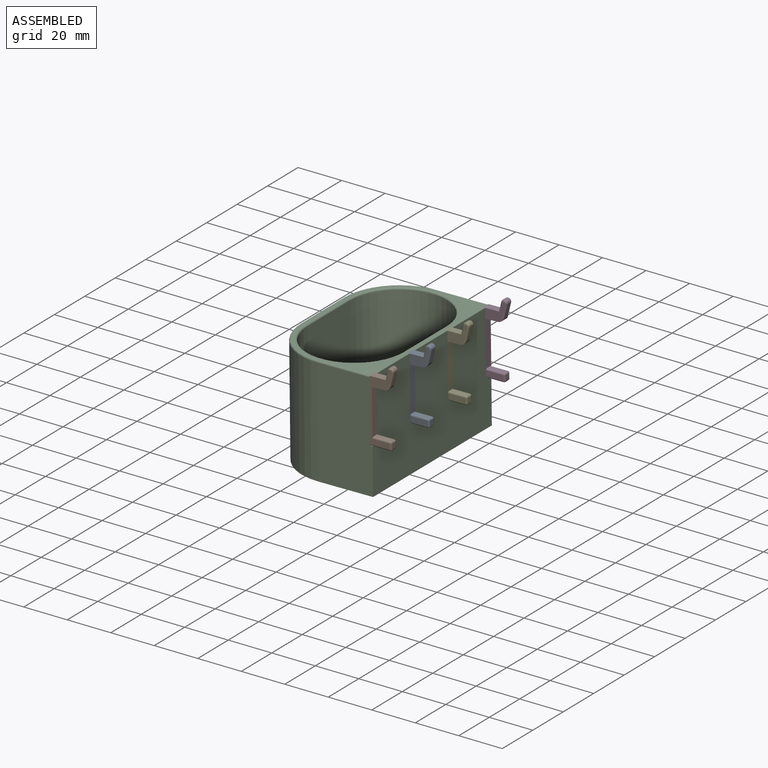
[diagram: assembled view]
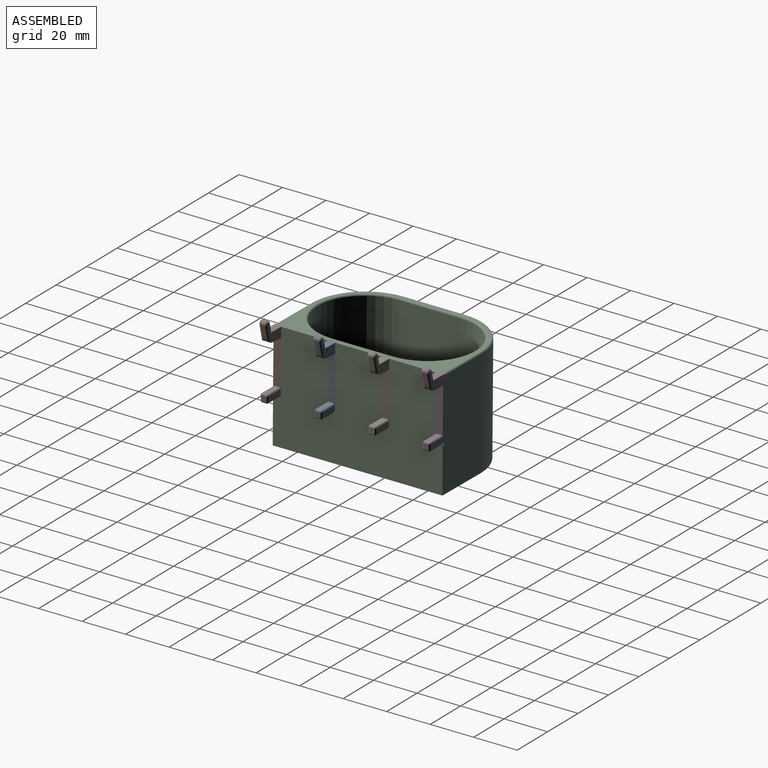
[diagram: assembled view, second angle]
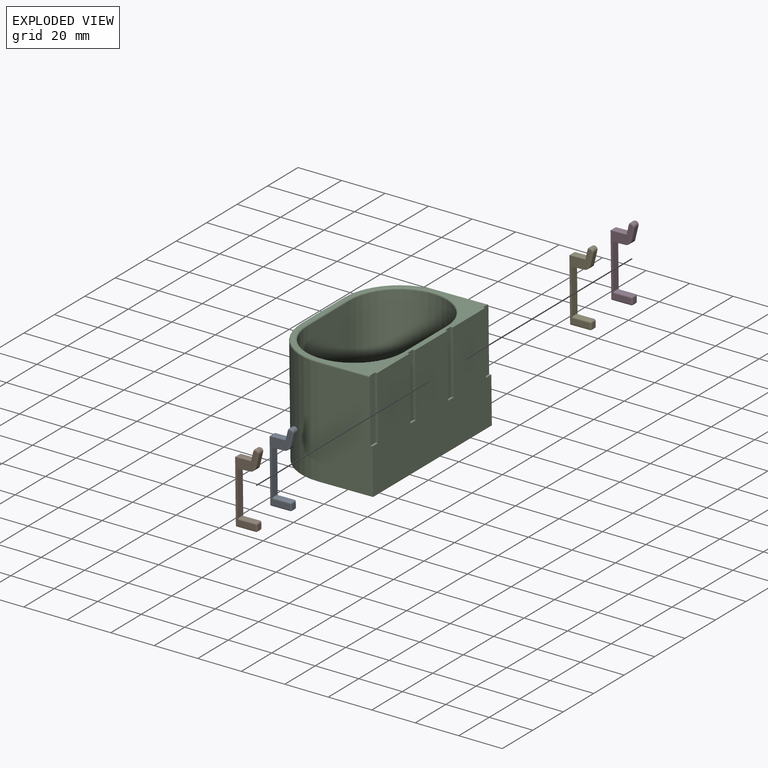
[diagram: exploded view]
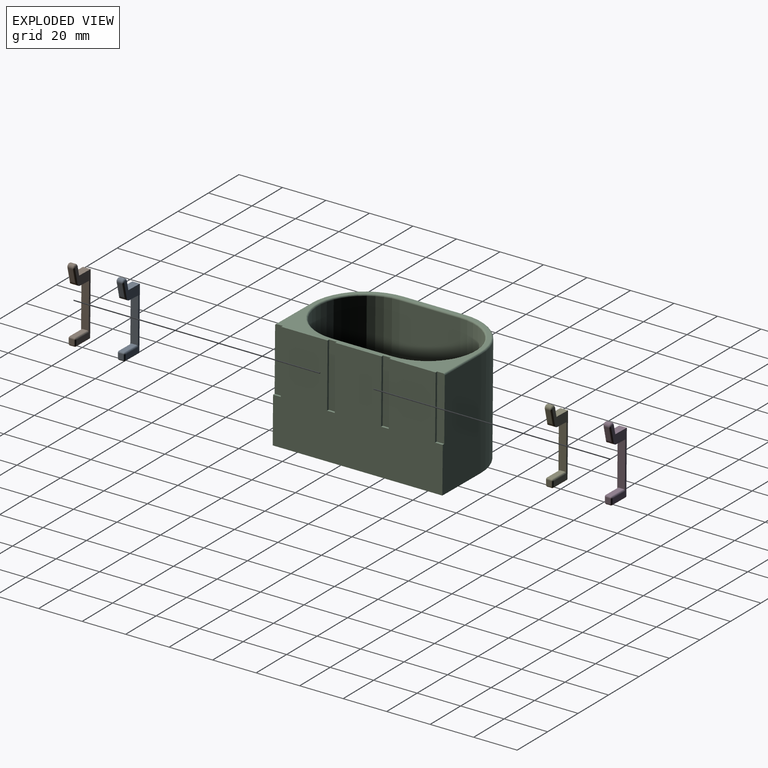
[diagram: exploded view, second angle]
ASSEMBLY  parts=5 mates=5
PART A: 33 faces, bbox 11x3.6x34.4 mm
  f0: plane 5.96x3.5mm, normal (0.04,0,-1), area 20.9mm2, adj f1,f6,f7,f8
  f1: cylinder r=2.76mm len=3.5mm, axis (0,-1,0), area 10.6mm2, adj f0,f2,f6,f7,f17,f20
  f2: plane 5.72x2mm, normal (0.97,0,-0.25), area 11.8mm2, adj f1,f3,f17,f20
  f3: cylinder r=1.42mm len=2.81mm, axis (0,-1,0), area 9.2mm2, adj f2,f4,f16,f19
  f4: plane 4.19x2mm, normal (-0.97,0,0.24), area 8.6mm2, adj f3,f5,f15,f18
  f5: plane 6.9x3.58mm, normal (-0.01,0,1), area 21.4mm2, adj f4,f6,f7,f12,f15,f18
  f6: plane 32.86x10.13mm, normal (0,1,0), area 86.3mm2, adj f0,f1,f5,f8,f13,f14,f15,f16
  f7: plane 32.86x10.13mm, normal (0,-1,0), area 86.3mm2, adj f0,f1,f5,f8,f13,f14,f18,f19
  f8: plane 21.41x3.5mm, normal (1,0,0), area 72.6mm2, adj f0,f6,f7,f11,f21,f22
  f9: plane 8.9x2mm, normal (0,0,-1), area 17.8mm2, adj f14,f27,f28,f32
  f10: plane 2.34x2mm, normal (1,0,0), area 4.7mm2, adj f23,f26,f29,f32
  f11: plane 7.9x2mm, normal (0,0,1), area 15.8mm2, adj f8,f21,f22,f23
  f12: plane 3.5x0mm, normal (1,0,0), area 0mm2, adj f5,f13
  f13: plane 3.5x1mm, normal (0,0,1), area 3.5mm2, adj f6,f7,f12,f14
  f14: plane 29.02x3.5mm, normal (-1,0,0), area 101.3mm2, adj f6,f7,f9,f13,f27,f28
  f15: cylinder r=0.75mm len=4.36mm, axis (0.24,0,0.97), area 5mm2, adj f4,f5,f6,f16
  f16: torus R=0.67mm, axis (0,-1,0), area 4.4mm2, adj f3,f6,f15,f17
  f17: cylinder r=0.75mm len=7.77mm, axis (-0.25,0,-0.97), area 8.2mm2, adj f1,f2,f6,f16
  f18: cylinder r=0.75mm len=4.36mm, axis (-0.24,0,-0.97), area 5mm2, adj f4,f5,f7,f19
  f19: torus R=0.67mm, axis (0,-1,0), area 4.4mm2, adj f3,f7,f18,f20
  f20: cylinder r=0.75mm len=7.77mm, axis (0.25,0,0.97), area 8.2mm2, adj f1,f2,f7,f19
  f21: cylinder r=0.75mm len=7.9mm, axis (1,0,0), area 9.3mm2, adj f6,f8,f11,f24
  f22: cylinder r=0.75mm len=7.9mm, axis (-1,0,0), area 9.3mm2, adj f7,f8,f11,f25
  f23: cylinder r=0.75mm len=2mm, axis (0,-1,0), area 2.4mm2, adj f10,f11,f24,f25
  f24: sphere r=0.75mm, area 0.9mm2, adj f21,f23,f26
  f25: sphere r=0.75mm, area 0.9mm2, adj f22,f23,f29
  f26: cylinder r=0.75mm len=2.34mm, axis (0,0,-1), area 2.8mm2, adj f6,f10,f24,f30
  f27: cylinder r=0.75mm len=8.9mm, axis (-1,0,0), area 10.5mm2, adj f6,f9,f14,f30
  f28: cylinder r=0.75mm len=8.9mm, axis (1,0,0), area 10.5mm2, adj f7,f9,f14,f31
  f29: cylinder r=0.75mm len=2.34mm, axis (0,0,1), area 2.8mm2, adj f7,f10,f25,f31
  f30: sphere r=0.75mm, area 0.9mm2, adj f26,f27,f32
  f31: sphere r=0.75mm, area 0.9mm2, adj f28,f29,f32
  f32: cylinder r=0.75mm len=2mm, axis (0,-1,0), area 2.4mm2, adj f9,f10,f30,f31
PART B: same geometry as A
PART C: 40 faces, bbox 52.3x82.1x50 mm
  f0: plane 3.5x1mm, normal (0,0,1), area 3.5mm2, adj f1,f8,f21,f26
  f1: plane 29.02x3.5mm, normal (1,0,0), area 101.6mm2, adj f0,f17,f21,f26
  f2: plane 3.5x1mm, normal (0,0,1), area 3.5mm2, adj f3,f8,f23,f25
  f3: plane 29.02x3.5mm, normal (1,0,0), area 101.6mm2, adj f2,f17,f23,f25
  f4: plane 3.5x1mm, normal (0,0,1), area 3.5mm2, adj f5,f7,f8,f22
  f5: plane 29.02x3.5mm, normal (1,0,0), area 101.4mm2, adj f4,f7,f17,f22,f27
  f6: plane 49.25x25mm, normal (0,1,0), area 1203mm2, adj f8,f9,f14,f19,f20,f31
  f7: plane 49.25x25mm, normal (0,-1,0), area 1203mm2, adj f4,f5,f8,f9,f16,f27
  f8: plane 78x50mm, normal (1,0,0), area 3493.7mm2, adj f0,f2,f4,f6,f7,f9,f17,f19
  f9: plane 78x50mm, normal (0,0,-1), area 3631.7mm2, adj f6,f7,f8,f14,f15,f16
  f10: plane 46.5x28mm, normal (1,0,0), area 1302mm2, adj f12,f13,f33,f37
  f11: plane 46.5x28mm, normal (-1,0,0), area 1302mm2, adj f12,f13,f34,f38
  f12: cylinder r=22mm len=46.5mm, axis (0,0,-1), area 3213.8mm2, adj f10,f11,f32,f36
  f13: cylinder r=22mm len=46.5mm, axis (0,0,-1), area 3213.8mm2, adj f10,f11,f35,f39
  f14: cylinder r=25mm len=49.25mm, axis (0,0,-1), area 1934mm2, adj f6,f9,f15,f30
  f15: plane 49.25x28mm, normal (-1,0,0), area 1379mm2, adj f9,f14,f16,f29
  f16: cylinder r=25mm len=49.25mm, axis (0,0,-1), area 1934mm2, adj f7,f9,f15,f28
  f17: plane 76.5x49.25mm, normal (0,0,1), area 602.8mm2, adj f1,f3,f5,f8,f20,f21,f22,f23
  f18: plane 70.5x42.5mm, normal (0,0,1), area 2608.6mm2, adj f36,f37,f38,f39
  f19: plane 3.5x1mm, normal (0,0,1), area 3.5mm2, adj f6,f8,f20,f24
  f20: plane 29.02x3.5mm, normal (1,0,0), area 101.4mm2, adj f6,f17,f19,f24,f31
  f21: plane 29.02x1mm, normal (0,1,0), area 29mm2, adj f0,f1,f8,f17
  f22: plane 29.02x1mm, normal (0,-1,0), area 29mm2, adj f4,f5,f8,f17
  f23: plane 29.02x1mm, normal (0,-1,0), area 29mm2, adj f2,f3,f8,f17
  f24: plane 29.02x1mm, normal (0,1,0), area 29mm2, adj f8,f17,f19,f20
  f25: plane 29.02x1mm, normal (0,1,0), area 29mm2, adj f2,f3,f8,f17
  f26: plane 29.02x1mm, normal (0,-1,0), area 29mm2, adj f0,f1,f8,f17
  f27: cylinder r=0.75mm len=24mm, axis (-1,0,0), area 28.3mm2, adj f5,f7,f17,f28
  f28: torus R=24.25mm, axis (0,0,1), area 45.8mm2, adj f16,f17,f27,f29
  f29: cylinder r=0.75mm len=28mm, axis (0,1,0), area 33mm2, adj f15,f17,f28,f30
  f30: torus R=24.25mm, axis (0,0,1), area 45.8mm2, adj f14,f17,f29,f31
  f31: cylinder r=0.75mm len=24mm, axis (1,0,0), area 28.3mm2, adj f6,f17,f20,f30
  f32: torus R=22.75mm, axis (0,0,1), area 82.4mm2, adj f12,f17,f33,f34
  f33: cylinder r=0.75mm len=28mm, axis (0,-1,0), area 33mm2, adj f10,f17,f32,f35
  f34: cylinder r=0.75mm len=28mm, axis (0,1,0), area 33mm2, adj f11,f17,f32,f35
  f35: torus R=22.75mm, axis (0,0,1), area 82.4mm2, adj f13,f17,f33,f34
  f36: torus R=21.25mm, axis (0,0,1), area 80.4mm2, adj f12,f18,f37,f38
  f37: cylinder r=0.75mm len=28mm, axis (0,1,0), area 33mm2, adj f10,f18,f36,f39
  f38: cylinder r=0.75mm len=28mm, axis (0,-1,0), area 33mm2, adj f11,f18,f36,f39
  f39: torus R=21.25mm, axis (0,0,1), area 80.4mm2, adj f13,f18,f37,f38
PART D: same geometry as A
PART E: same geometry as A
PLACE A rot(axis=(0,-1,0),0.7deg) t=(-41.6,74.5,-21.5)mm
PLACE B rot(axis=(0,-1,0),0.7deg) t=(-41.6,49.66,-21.5)mm
PLACE C rot(axis=(0,-1,0),0.7deg) t=(-41.6,49.66,-21.5)mm
PLACE D rot(axis=(0,-1,0),0.7deg) t=(-41.6,124.16,-21.5)mm
PLACE E rot(axis=(0,-1,0),0.7deg) t=(-41.6,99.33,-21.5)mm
MATE fastened E.f7 <-> C.f25  axis (0,-1,0) through (-6.85,21.33,-0.11)mm
MATE fastened A.f7 <-> C.f21  axis (0,-1,0) through (-6.85,-3.5,-0.11)mm
MATE fastened B.f7 <-> C.f7  axis (0,-1,0) through (-6.85,-28.34,-0.11)mm
MATE fastened A.f7 <-> C.f21  axis (0,-1,0) through (-6.85,-3.5,-0.11)mm
MATE fastened D.f7 <-> C.f24  axis (0,-1,0) through (-6.85,46.16,-0.11)mm
